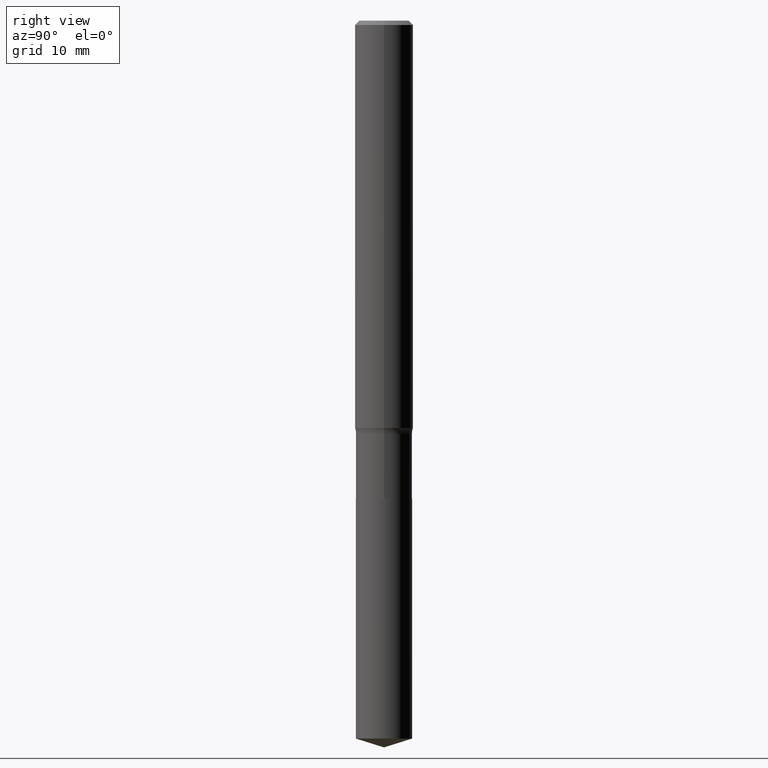
[diagram: clean part render]
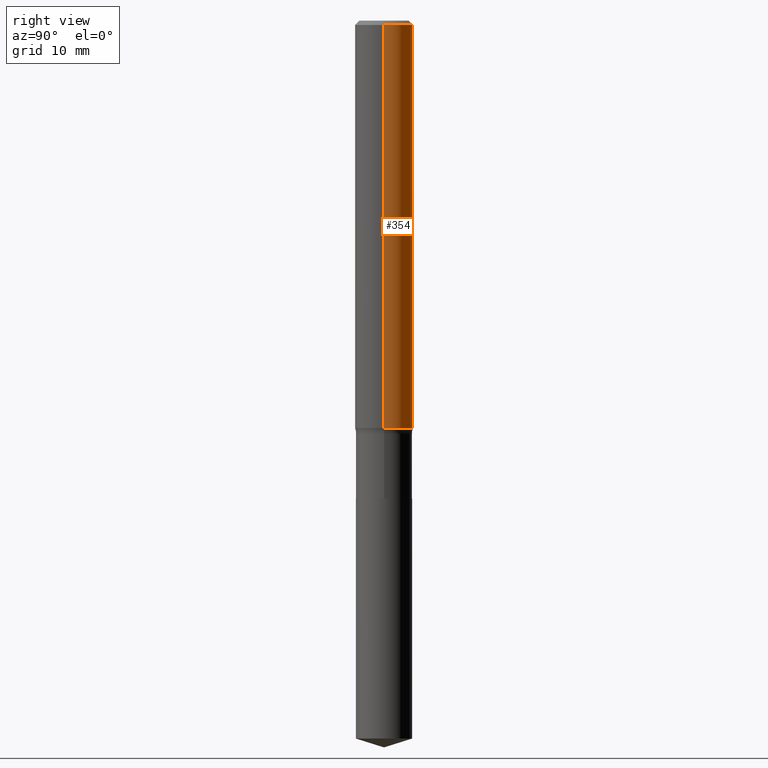
[diagram: same view with one face highlighted and labeled with its STEP entity id]
A machine part, right view. The second image highlights one B-rep face of the part: STEP entity #354.
In plain terms, the highlighted cylindrical surface (edge-blend (fillet) strip) has radius 3.175 mm, axis along (-0, 0, 1).
Its self-contained STEP definition (entity closure, byte-faithful):
#1 = CARTESIAN_POINT ( 'NONE',  ( -0.1250000000000002498, -5.227298988527986876E-15, -1.751542343988123251 ) ) ;
#32 = DIRECTION ( 'NONE',  ( -2.445468806185136597E-29, 3.491481338843145583E-15, 1.000000000000000000 ) ) ;
#39 = CIRCLE ( 'NONE', #448, 0.1250000000000000278 ) ;
#53 = VERTEX_POINT ( 'NONE', #1 ) ;
#69 = EDGE_CURVE ( 'NONE', #391, #227, #446, .T. ) ;
#70 = CARTESIAN_POINT ( 'NONE',  ( 0.1250000000000001110, -8.728703347107842263E-16, 6.095220969744926047E-30 ) ) ;
#73 = CYLINDRICAL_SURFACE ( 'NONE', #327, 0.1250000000000001110 ) ;
#98 = DIRECTION ( 'NONE',  ( -2.445468806185136877E-29, 3.491481338843145188E-15, 1.000000000000000000 ) ) ;
#126 = AXIS2_PLACEMENT_3D ( 'NONE', #326, #402, #279 ) ;
#143 = DIRECTION ( 'NONE',  ( -2.445468806185136597E-29, 3.491481338843145583E-15, 1.000000000000000000 ) ) ;
#149 = DIRECTION ( 'NONE',  ( 1.000000000000000000, -6.982962677686265922E-15, 0.000000000000000000 ) ) ;
#151 = CARTESIAN_POINT ( 'NONE',  ( 0.1250000000000002498, -6.988347742938897814E-15, -1.751542343988123251 ) ) ;
#172 = ORIENTED_EDGE ( 'NONE', *, *, #69, .F. ) ;
#181 = DIRECTION ( 'NONE',  ( 1.000000000000000000, -6.982962677686267499E-15, 4.876176775795936353E-29 ) ) ;
#182 = ORIENTED_EDGE ( 'NONE', *, *, #406, .T. ) ;
#185 = VERTEX_POINT ( 'NONE', #204 ) ;
#204 = CARTESIAN_POINT ( 'NONE',  ( -0.1250000000000000278, -2.202292921965584605E-15, -0.01875000000000014155 ) ) ;
#207 = CIRCLE ( 'NONE', #126, 0.1250000000000002220 ) ;
#221 = FACE_OUTER_BOUND ( 'NONE', #358, .T. ) ;
#225 = DIRECTION ( 'NONE',  ( -2.445468806185136877E-29, 3.491481338843145188E-15, 1.000000000000000000 ) ) ;
#227 = VERTEX_POINT ( 'NONE', #412 ) ;
#279 = DIRECTION ( 'NONE',  ( 1.000000000000000000, -6.982962677686265922E-15, 0.000000000000000000 ) ) ;
#326 = CARTESIAN_POINT ( 'NONE',  ( 4.283342164935351862E-29, -6.115477408228114475E-15, -1.751542343988123251 ) ) ;
#327 = AXIS2_PLACEMENT_3D ( 'NONE', #364, #32, #181 ) ;
#335 = VECTOR ( 'NONE', #98, 39.37007874015748143 ) ;
#354 = ADVANCED_FACE ( 'NONE', ( #221 ), #73, .T. ) ;
#358 = EDGE_LOOP ( 'NONE', ( #365, #182, #455, #172 ) ) ;
#362 = EDGE_CURVE ( 'NONE', #227, #185, #39, .T. ) ;
#364 = CARTESIAN_POINT ( 'NONE',  ( 0.000000000000000000, 0.000000000000000000, 0.000000000000000000 ) ) ;
#365 = ORIENTED_EDGE ( 'NONE', *, *, #399, .T. ) ;
#391 = VERTEX_POINT ( 'NONE', #151 ) ;
#399 = EDGE_CURVE ( 'NONE', #391, #53, #207, .T. ) ;
#402 = DIRECTION ( 'NONE',  ( -2.445468806185136597E-29, 3.491481338843145583E-15, 1.000000000000000000 ) ) ;
#406 = EDGE_CURVE ( 'NONE', #53, #185, #491, .T. ) ;
#412 = CARTESIAN_POINT ( 'NONE',  ( 0.1250000000000000278, -9.383356098140928781E-16, -0.01875000000000014155 ) ) ;
#432 = VECTOR ( 'NONE', #225, 39.37007874015748143 ) ;
#435 = CARTESIAN_POINT ( 'NONE',  ( -0.1250000000000001110, 8.881784197001260212E-16, -6.148668862818637832E-30 ) ) ;
#446 = LINE ( 'NONE', #70, #432 ) ;
#448 = AXIS2_PLACEMENT_3D ( 'NONE', #492, #143, #149 ) ;
#455 = ORIENTED_EDGE ( 'NONE', *, *, #362, .F. ) ;
#491 = LINE ( 'NONE', #435, #335 ) ;
#492 = CARTESIAN_POINT ( 'NONE',  ( 4.585254011597165626E-31, -6.546527510330947764E-17, -0.01875000000000014155 ) ) ;